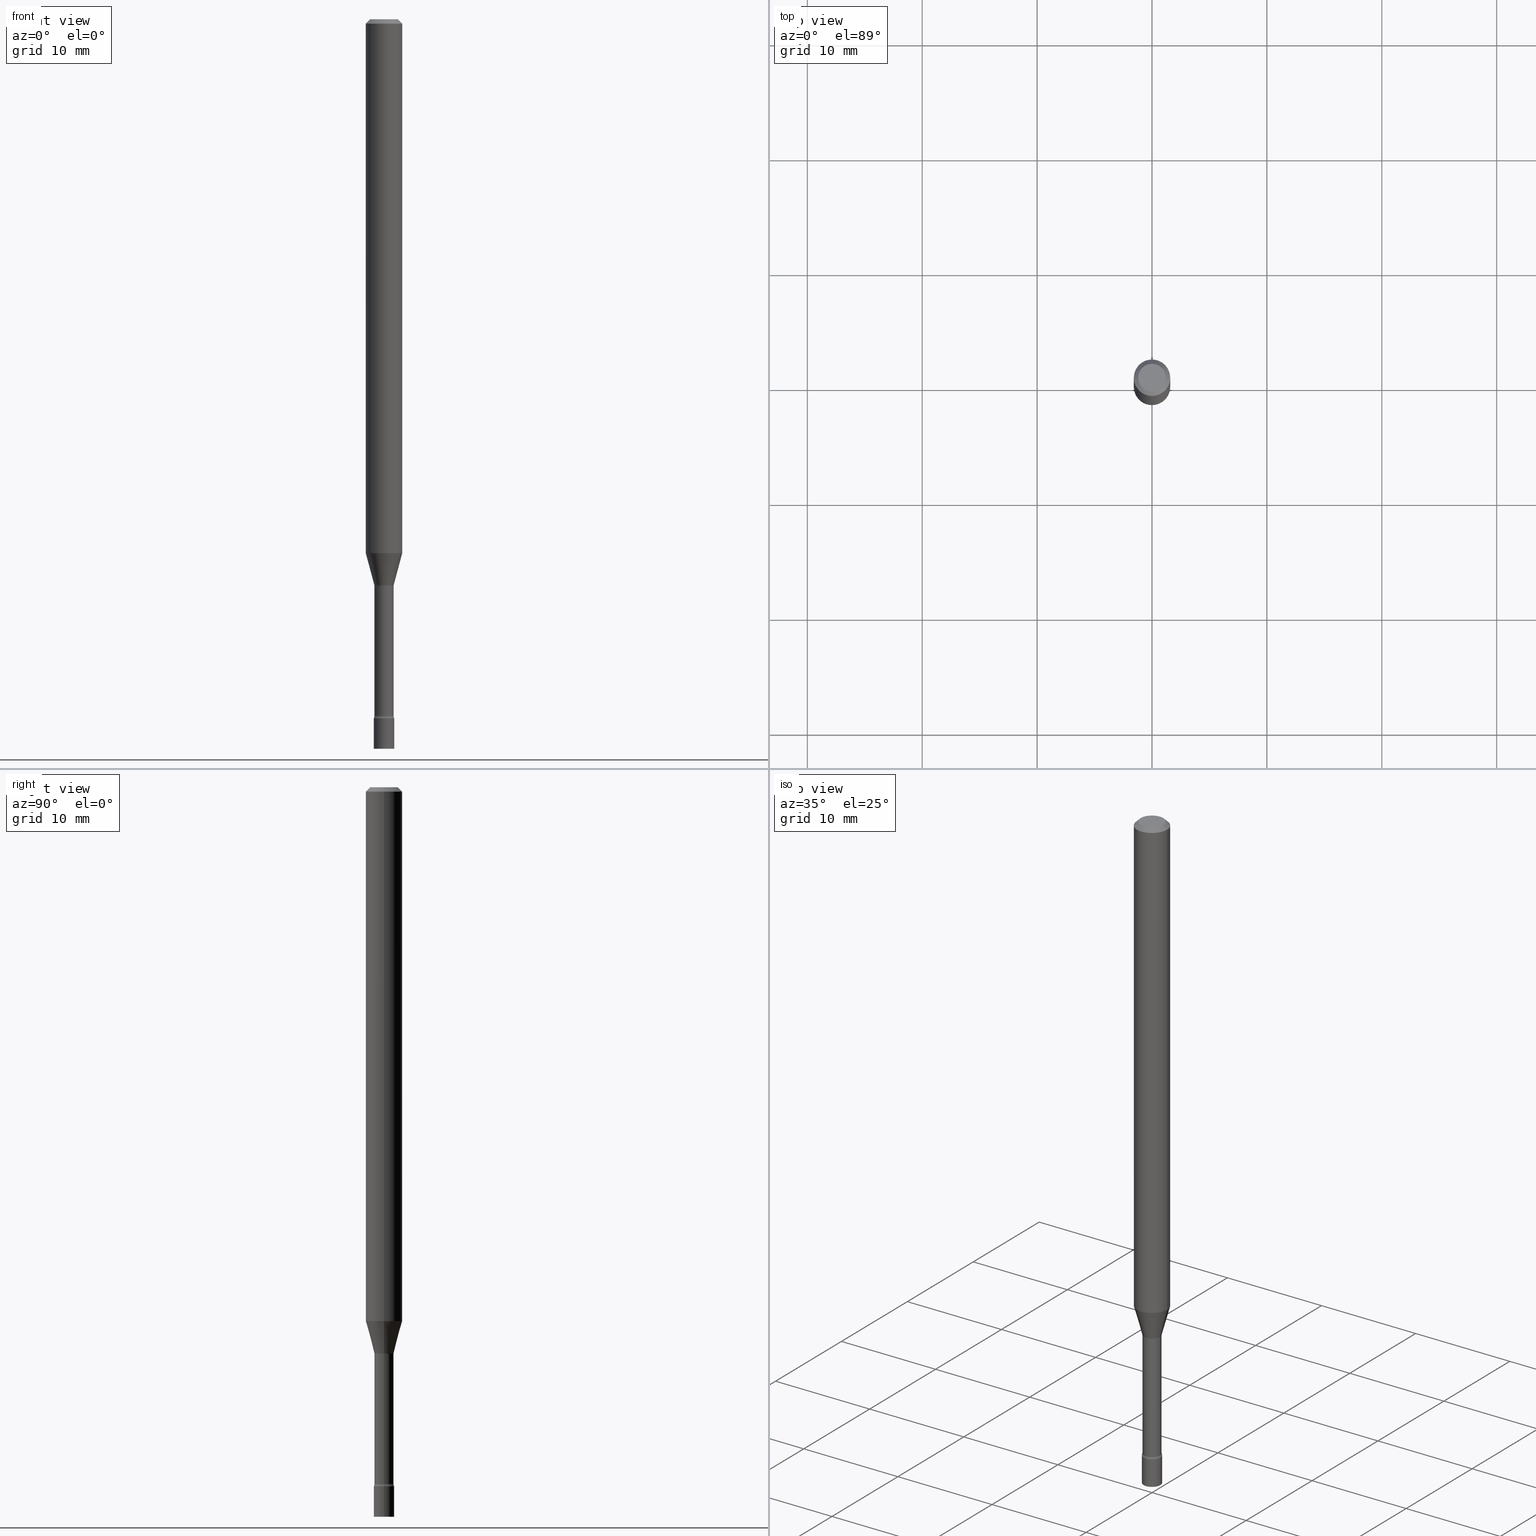
[diagram: canonical four-view strip — front | top / right | iso, engineering-drawing reading convention]
A machine part, canonical four-view strip (front | top / right | iso — engineering-drawing reading convention). The complete STEP part file that produces these views, byte-faithful:
ISO-10303-21;
HEADER;
FILE_DESCRIPTION (( 'STEP AP203' ),
    '1' );
FILE_NAME ('09706.STEP',
    '2024-03-09T01:03:56',
    ( '' ),
    ( '' ),
    'SwSTEP 2.0',
    'SolidWorks 2023',
    '' );
FILE_SCHEMA (( 'CONFIG_CONTROL_DESIGN' ));
ENDSEC;

DATA;
#1 = DIRECTION ( 'NONE',  ( -2.445468806185136597E-29, 3.491481338843145583E-15, 1.000000000000000000 ) ) ;
#2 = VERTEX_POINT ( 'NONE', #297 ) ;
#3 = DIRECTION ( 'NONE',  ( -2.445468806185136597E-29, 3.491481338843145583E-15, 1.000000000000000000 ) ) ;
#4 = CIRCLE ( 'NONE', #302, 0.06250000000000000000 ) ;
#5 = ORGANIZATION ( 'UNSPECIFIED', 'UNSPECIFIED', '' ) ;
#6 = ORIENTED_EDGE ( 'NONE', *, *, #220, .F. ) ;
#7 = LINE ( 'NONE', #327, #363 ) ;
#8 = CARTESIAN_POINT ( 'NONE',  ( 0.000000000000000000, 0.000000000000000000, 0.000000000000000000 ) ) ;
#9 = AXIS2_PLACEMENT_3D ( 'NONE', #372, #30, #25 ) ;
#10 = ADVANCED_FACE ( 'NONE', ( #123 ), #55, .T. ) ;
#11 = DIRECTION ( 'NONE',  ( 1.000000000000000000, 0.000000000000000000, 0.000000000000000000 ) ) ;
#12 = LINE ( 'NONE', #492, #133 ) ;
#13 = CARTESIAN_POINT ( 'NONE',  ( 5.856897790813402508E-29, -8.362097806529333416E-15, -2.395000000000000018 ) ) ;
#14 = DIRECTION ( 'NONE',  ( 0.000000000000000000, 0.000000000000000000, 1.000000000000000000 ) ) ;
#15 = DIRECTION ( 'NONE',  ( -2.445468806185136597E-29, 3.491481338843145583E-15, 1.000000000000000000 ) ) ;
#16 = ORIENTED_EDGE ( 'NONE', *, *, #505, .F. ) ;
#17 = EDGE_CURVE ( 'NONE', #518, #483, #121, .T. ) ;
#18 = CARTESIAN_POINT ( 'NONE',  ( -0.03500000000000000333, -8.296710619302563893E-15, -2.500000000000000000 ) ) ;
#19 = CALENDAR_DATE ( 2024, 8, 3 ) ;
#20 = VECTOR ( 'NONE', #422, 39.37007874015748143 ) ;
#21 = TOROIDAL_SURFACE ( 'NONE', #446, 0.04790000000000001201, 0.01500000000000006710 ) ;
#22 = VERTEX_POINT ( 'NONE', #254 ) ;
#23 = CARTESIAN_POINT ( 'NONE',  ( 5.838179168722289395E-29, -8.335372575132116772E-15, -2.387345589506695731 ) ) ;
#24 = APPLICATION_CONTEXT ( 'configuration controlled 3d designs of mechanical parts and assemblies' ) ;
#25 = DIRECTION ( 'NONE',  ( 1.000000000000000000, -6.982962677686276966E-15, 0.000000000000000000 ) ) ;
#26 = DATE_AND_TIME ( #419, #288 ) ;
#27 = ORIENTED_EDGE ( 'NONE', *, *, #220, .T. ) ;
#28 = ADVANCED_FACE ( 'NONE', ( #171 ), #83, .T. ) ;
#29 = DIRECTION ( 'NONE',  ( -2.445468806185136597E-29, 3.491481338843145583E-15, 1.000000000000000000 ) ) ;
#30 = DIRECTION ( 'NONE',  ( -2.445468806185136597E-29, 3.491481338843145583E-15, 1.000000000000000000 ) ) ;
#31 = CALENDAR_DATE ( 2024, 8, 3 ) ;
#32 = PRODUCT_RELATED_PRODUCT_CATEGORY ( 'detail', '', ( #371 ) ) ;
#33 = PERSON_AND_ORGANIZATION_ROLE ( 'design_supplier' ) ;
#34 = UNCERTAINTY_MEASURE_WITH_UNIT (LENGTH_MEASURE( 1.000000000000000082E-05 ), #39, 'distance_accuracy_value', 'NONE');
#35 = ADVANCED_FACE ( 'NONE', ( #457 ), #127, .F. ) ;
#36 = CARTESIAN_POINT ( 'NONE',  ( -0.03500000000000000333, -8.296710619302563893E-15, -2.395000000000000018 ) ) ;
#37 = DIRECTION ( 'NONE',  ( -2.445468806185136877E-29, 3.491481338843145188E-15, 1.000000000000000000 ) ) ;
#38 = EDGE_LOOP ( 'NONE', ( #396, #141, #361, #226 ) ) ;
#39 =( CONVERSION_BASED_UNIT ( 'INCH', #76 ) LENGTH_UNIT ( ) NAMED_UNIT ( #201 ) );
#40 = ORIENTED_EDGE ( 'NONE', *, *, #367, .F. ) ;
#41 = EDGE_CURVE ( 'NONE', #420, #319, #12, .T. ) ;
#42 = ORIENTED_EDGE ( 'NONE', *, *, #212, .T. ) ;
#43 = CC_DESIGN_DATE_AND_TIME_ASSIGNMENT ( #255, #408, ( #388 ) ) ;
#44 = DIRECTION ( 'NONE',  ( -2.445468806185136597E-29, 3.491481338843145583E-15, 1.000000000000000000 ) ) ;
#45 = VECTOR ( 'NONE', #466, 39.37007874015748143 ) ;
#46 = LOCAL_TIME ( 20, 3, 56.00000000000000000, #146 ) ;
#47 = DIRECTION ( 'NONE',  ( -2.438088387897960049E-29, 3.491481338843145188E-15, 1.000000000000000000 ) ) ;
#48 = DIRECTION ( 'NONE',  ( 1.000000000000000000, -6.982962677686266711E-15, 4.876176775795935793E-29 ) ) ;
#49 = ADVANCED_FACE ( 'NONE', ( #207 ), #214, .T. ) ;
#50 = LINE ( 'NONE', #213, #445 ) ;
#51 = CIRCLE ( 'NONE', #187, 0.06250000000000000000 ) ;
#52 = COORDINATED_UNIVERSAL_TIME_OFFSET ( 5, 0, .BEHIND. ) ;
#53 = EDGE_LOOP ( 'NONE', ( #351, #172, #27, #512 ) ) ;
#54 = EDGE_CURVE ( 'NONE', #68, #295, #216, .T. ) ;
#55 = CYLINDRICAL_SURFACE ( 'NONE', #413, 0.03289999999999996400 ) ;
#56 = DIRECTION ( 'NONE',  ( -6.982962677686266711E-15, -1.000000000000000000, 3.491481338843145583E-15 ) ) ;
#57 = CARTESIAN_POINT ( 'NONE',  ( 0.03500000000000003803, -8.606501500248354960E-15, -2.395000000000000018 ) ) ;
#58 = CIRCLE ( 'NONE', #322, 0.03341111260566397706 ) ;
#59 = CONICAL_SURFACE ( 'NONE', #395, 0.03341111260566397706, 0.2617993877991501850 ) ;
#60 = ORIENTED_EDGE ( 'NONE', *, *, #129, .F. ) ;
#61 = CARTESIAN_POINT ( 'NONE',  ( 4.474061714542137038E-29, -6.387774379148563553E-15, -1.829531296095961546 ) ) ;
#62 = SHAPE_DEFINITION_REPRESENTATION ( #299, #124 ) ;
#63 = AXIS2_PLACEMENT_3D ( 'NONE', #506, #101, #145 ) ;
#64 = CC_DESIGN_SECURITY_CLASSIFICATION ( #416, ( #364 ) ) ;
#65 = CARTESIAN_POINT ( 'NONE',  ( 2.444036937190804617E-16, 0.03499999999999127420, -2.500000000000000000 ) ) ;
#66 = ADVANCED_FACE ( 'NONE', ( #251 ), #401, .T. ) ;
#67 = ORIENTED_EDGE ( 'NONE', *, *, #196, .T. ) ;
#68 = VERTEX_POINT ( 'NONE', #18 ) ;
#69 = CARTESIAN_POINT ( 'NONE',  ( 4.749038765140760416E-29, -6.780368730933779783E-15, -1.941974787463811136 ) ) ;
#70 = DIRECTION ( 'NONE',  ( -2.445468806185136597E-29, 3.491481338843145583E-15, 1.000000000000000000 ) ) ;
#71 = ORIENTED_EDGE ( 'NONE', *, *, #204, .F. ) ;
#72 = CIRCLE ( 'NONE', #168, 0.03341111260566397706 ) ;
#73 = AXIS2_PLACEMENT_3D ( 'NONE', #239, #158, #317 ) ;
#74 = DIRECTION ( 'NONE',  ( 1.000000000000000000, -6.982962677686267499E-15, 4.876176775795936353E-29 ) ) ;
#75 = EDGE_CURVE ( 'NONE', #295, #91, #385, .T. ) ;
#76 = LENGTH_MEASURE_WITH_UNIT ( LENGTH_MEASURE( 0.02539999999999999897 ), #469 );
#77 = ORIENTED_EDGE ( 'NONE', *, *, #482, .F. ) ;
#78 = EDGE_LOOP ( 'NONE', ( #137, #42, #156, #493 ) ) ;
#79 = DIRECTION ( 'NONE',  ( -2.445468806185136597E-29, 3.491481338843145583E-15, 1.000000000000000000 ) ) ;
#80 = ORIENTED_EDGE ( 'NONE', *, *, #196, .F. ) ;
#81 = CARTESIAN_POINT ( 'NONE',  ( -0.03289999999999994318, -8.107505932040171616E-15, -2.387345589506695731 ) ) ;
#82 = ORIENTED_EDGE ( 'NONE', *, *, #290, .F. ) ;
#83 = CONICAL_SURFACE ( 'NONE', #294, 0.06250000000000000000, 0.7853981633974483900 ) ;
#84 = AXIS2_PLACEMENT_3D ( 'NONE', #511, #160, #323 ) ;
#85 = CARTESIAN_POINT ( 'NONE',  ( -0.04789999999999999813, -6.440018760504691413E-15, -1.941974787463811136 ) ) ;
#86 = DIRECTION ( 'NONE',  ( 1.000000000000000000, -6.982962677686267499E-15, 4.876176775795936353E-29 ) ) ;
#87 = PERSON_AND_ORGANIZATION ( #269, #5 ) ;
#88 = CARTESIAN_POINT ( 'NONE',  ( 0.000000000000000000, 0.000000000000000000, 0.000000000000000000 ) ) ;
#89 = AXIS2_PLACEMENT_3D ( 'NONE', #460, #418, #224 ) ;
#90 = COORDINATED_UNIVERSAL_TIME_OFFSET ( 5, 0, .BEHIND. ) ;
#91 = VERTEX_POINT ( 'NONE', #333 ) ;
#92 = DATE_AND_TIME ( #19, #46 ) ;
#93 = CC_DESIGN_PERSON_AND_ORGANIZATION_ASSIGNMENT ( #186, #33, ( #364 ) ) ;
#94 = DIRECTION ( 'NONE',  ( -2.445468806185136597E-29, 3.491481338843145583E-15, 1.000000000000000000 ) ) ;
#95 = FACE_OUTER_BOUND ( 'NONE', #373, .T. ) ;
#96 = ORIENTED_EDGE ( 'NONE', *, *, #54, .F. ) ;
#97 = FACE_OUTER_BOUND ( 'NONE', #164, .T. ) ;
#98 = VECTOR ( 'NONE', #37, 39.37007874015748143 ) ;
#99 = DIRECTION ( 'NONE',  ( -2.445468806185136597E-29, 3.491481338843145583E-15, 1.000000000000000000 ) ) ;
#100 = EDGE_LOOP ( 'NONE', ( #318, #175, #223, #390 ) ) ;
#101 = DIRECTION ( 'NONE',  ( -2.445468806185136597E-29, 3.491481338843145583E-15, 1.000000000000000000 ) ) ;
#102 = DIRECTION ( 'NONE',  ( 1.000000000000000000, -6.982962677686266711E-15, 4.883557194083113462E-29 ) ) ;
#103 = PLANE ( 'NONE',  #454 ) ;
#104 = CIRCLE ( 'NONE', #143, 0.03289999999999994318 ) ;
#105 = CIRCLE ( 'NONE', #9, 0.03500000000000000333 ) ;
#106 = AXIS2_PLACEMENT_3D ( 'NONE', #346, #70, #283 ) ;
#107 = VERTEX_POINT ( 'NONE', #57 ) ;
#108 = DIRECTION ( 'NONE',  ( -2.445468806185136597E-29, 3.491481338843145583E-15, 1.000000000000000000 ) ) ;
#109 = ORIENTED_EDGE ( 'NONE', *, *, #285, .F. ) ;
#110 = CARTESIAN_POINT ( 'NONE',  ( 0.03289999999999999175, -7.010108203029657542E-15, -1.941974787463811136 ) ) ;
#111 = EDGE_CURVE ( 'NONE', #501, #2, #51, .T. ) ;
#112 = CARTESIAN_POINT ( 'NONE',  ( 7.070806723891919892E-46, -1.009523804376275404E-31, -2.891391092786900929E-17 ) ) ;
#113 = EDGE_LOOP ( 'NONE', ( #520, #275 ) ) ;
#114 = AXIS2_PLACEMENT_3D ( 'NONE', #338, #303, #464 ) ;
#115 = EDGE_CURVE ( 'NONE', #440, #518, #58, .T. ) ;
#116 = EDGE_LOOP ( 'NONE', ( #424, #465, #82, #60 ) ) ;
#117 = DIRECTION ( 'NONE',  ( 1.000000000000000000, -6.982962677686262766E-15, 0.000000000000000000 ) ) ;
#118 = APPROVAL_ROLE ( '' ) ;
#119 = ORIENTED_EDGE ( 'NONE', *, *, #212, .F. ) ;
#120 = DIRECTION ( 'NONE',  ( -2.445468806185136597E-29, 3.491481338843145583E-15, 1.000000000000000000 ) ) ;
#121 = CIRCLE ( 'NONE', #162, 0.01500000000000001853 ) ;
#122 = AXIS2_PLACEMENT_3D ( 'NONE', #225, #56, #263 ) ;
#123 = FACE_OUTER_BOUND ( 'NONE', #38, .T. ) ;
#124 = ADVANCED_BREP_SHAPE_REPRESENTATION ( '09706', ( #244, #432, #463 ), #495 ) ;
#125 = DIRECTION ( 'NONE',  ( 1.000000000000000000, -6.982962677686276966E-15, 0.000000000000000000 ) ) ;
#126 = DATE_AND_TIME ( #291, #155 ) ;
#127 = PLANE ( 'NONE',  #229 ) ;
#128 = PERSON_AND_ORGANIZATION_ROLE ( 'design_owner' ) ;
#129 = EDGE_CURVE ( 'NONE', #501, #245, #300, .T. ) ;
#130 = CARTESIAN_POINT ( 'NONE',  ( 3.668203209277712094E-31, -5.237222008264728876E-17, -0.01500000000000003067 ) ) ;
#131 = EDGE_LOOP ( 'NONE', ( #324, #441, #182, #119 ) ) ;
#132 = CALENDAR_DATE ( 2024, 8, 3 ) ;
#133 = VECTOR ( 'NONE', #334, 39.37007874015748143 ) ;
#134 = EDGE_LOOP ( 'NONE', ( #387, #472, #352, #474 ) ) ;
#135 = APPROVAL ( #490, 'UNSPECIFIED' ) ;
#136 = PERSON_AND_ORGANIZATION ( #269, #5 ) ;
#137 = ORIENTED_EDGE ( 'NONE', *, *, #345, .F. ) ;
#138 = CARTESIAN_POINT ( 'NONE',  ( 5.856897790813402508E-29, -8.362097806529333416E-15, -2.395000000000000018 ) ) ;
#139 = CARTESIAN_POINT ( 'NONE',  ( 5.838179168722290516E-29, -8.335372575132116772E-15, -2.387345589506695731 ) ) ;
#140 = PERSON_AND_ORGANIZATION_ROLE ( 'creator' ) ;
#141 = ORIENTED_EDGE ( 'NONE', *, *, #150, .T. ) ;
#142 = DATE_AND_TIME ( #31, #405 ) ;
#143 = AXIS2_PLACEMENT_3D ( 'NONE', #320, #274, #348 ) ;
#144 = CC_DESIGN_APPROVAL ( #438, ( #364 ) ) ;
#145 = DIRECTION ( 'NONE',  ( 1.000000000000000000, -6.982962677686273810E-15, 4.883557194083115704E-29 ) ) ;
#146 = COORDINATED_UNIVERSAL_TIME_OFFSET ( 5, 0, .BEHIND. ) ;
#147 = DIRECTION ( 'NONE',  ( -1.000000000000000000, 7.105427357601022369E-15, 0.000000000000000000 ) ) ;
#148 = ORIENTED_EDGE ( 'NONE', *, *, #332, .F. ) ;
#149 = CARTESIAN_POINT ( 'NONE',  ( -0.03289999999999996400, 2.337685600650727053E-16, -1.618329644693862428E-30 ) ) ;
#150 = EDGE_CURVE ( 'NONE', #240, #483, #261, .T. ) ;
#151 = DIRECTION ( 'NONE',  ( -2.445468806185136597E-29, 3.491481338843145583E-15, 1.000000000000000000 ) ) ;
#152 = DIRECTION ( 'NONE',  ( -1.000000000000000000, 6.982962677686266711E-15, 0.000000000000000000 ) ) ;
#153 = AXIS2_PLACEMENT_3D ( 'NONE', #13, #47, #365 ) ;
#154 =( NAMED_UNIT ( * ) SI_UNIT ( $, .STERADIAN. ) SOLID_ANGLE_UNIT ( ) );
#155 = LOCAL_TIME ( 20, 3, 56.00000000000000000, #90 ) ;
#156 = ORIENTED_EDGE ( 'NONE', *, *, #129, .T. ) ;
#157 = ADVANCED_FACE ( 'NONE', ( #259 ), #340, .T. ) ;
#158 = DIRECTION ( 'NONE',  ( -2.445468806185136597E-29, 3.491481338843145583E-15, 1.000000000000000000 ) ) ;
#159 = ORIENTED_EDGE ( 'NONE', *, *, #17, .F. ) ;
#160 = DIRECTION ( 'NONE',  ( -2.445468806185136597E-29, 3.491481338843145583E-15, 1.000000000000000000 ) ) ;
#161 = ORIENTED_EDGE ( 'NONE', *, *, #262, .T. ) ;
#162 = AXIS2_PLACEMENT_3D ( 'NONE', #85, #448, #491 ) ;
#163 = AXIS2_PLACEMENT_3D ( 'NONE', #232, #99, #425 ) ;
#164 = EDGE_LOOP ( 'NONE', ( #77, #67, #504, #197 ) ) ;
#165 = APPROVAL_ROLE ( '' ) ;
#166 = ADVANCED_FACE ( 'NONE', ( #97 ), #236, .T. ) ;
#167 = DIRECTION ( 'NONE',  ( 0.2588190451025214611, 1.565188264969620982E-15, 0.9659258262890679791 ) ) ;
#168 = AXIS2_PLACEMENT_3D ( 'NONE', #198, #44, #241 ) ;
#169 = MECHANICAL_CONTEXT ( 'NONE', #293, 'mechanical' ) ;
#170 = ADVANCED_FACE ( 'NONE', ( #429 ), #378, .F. ) ;
#171 = FACE_OUTER_BOUND ( 'NONE', #185, .T. ) ;
#172 = ORIENTED_EDGE ( 'NONE', *, *, #17, .T. ) ;
#173 = CARTESIAN_POINT ( 'NONE',  ( -0.03500000000000003803, -8.113407849013298919E-15, -2.395000000000000018 ) ) ;
#174 = DIRECTION ( 'NONE',  ( -2.445468806185136597E-29, 3.491481338843145583E-15, 1.000000000000000000 ) ) ;
#175 = ORIENTED_EDGE ( 'NONE', *, *, #54, .T. ) ;
#176 = ORIENTED_EDGE ( 'NONE', *, *, #150, .F. ) ;
#177 = AXIS2_PLACEMENT_3D ( 'NONE', #314, #433, #235 ) ;
#178 = CIRCLE ( 'NONE', #84, 0.03289999999999999175 ) ;
#179 = VERTEX_POINT ( 'NONE', #307 ) ;
#180 = EDGE_CURVE ( 'NONE', #91, #295, #105, .T. ) ;
#181 = DIRECTION ( 'NONE',  ( 7.105427357601001859E-15, 1.000000000000000000, -3.491481338843145583E-15 ) ) ;
#182 = ORIENTED_EDGE ( 'NONE', *, *, #332, .T. ) ;
#183 = DIRECTION ( 'NONE',  ( -1.000000000000000000, 6.982962677686265922E-15, -4.876176775795935793E-29 ) ) ;
#184 = DATE_TIME_ROLE ( 'classification_date' ) ;
#185 = EDGE_LOOP ( 'NONE', ( #80, #16, #443, #477 ) ) ;
#186 = PERSON_AND_ORGANIZATION ( #269, #5 ) ;
#187 = AXIS2_PLACEMENT_3D ( 'NONE', #411, #430, #191 ) ;
#188 = CIRCLE ( 'NONE', #311, 0.04749999999999999362 ) ;
#189 = FACE_OUTER_BOUND ( 'NONE', #134, .T. ) ;
#190 = ADVANCED_FACE ( 'NONE', ( #467 ), #103, .T. ) ;
#191 = DIRECTION ( 'NONE',  ( 1.000000000000000000, -6.982962677686262766E-15, 0.000000000000000000 ) ) ;
#192 = CYLINDRICAL_SURFACE ( 'NONE', #203, 0.03289999999999996400 ) ;
#193 = CIRCLE ( 'NONE', #114, 0.03500000000000000333 ) ;
#194 = EDGE_LOOP ( 'NONE', ( #109, #284, #316, #40 ) ) ;
#195 = FACE_OUTER_BOUND ( 'NONE', #391, .T. ) ;
#196 = EDGE_CURVE ( 'NONE', #384, #245, #309, .T. ) ;
#197 = ORIENTED_EDGE ( 'NONE', *, *, #41, .F. ) ;
#198 = CARTESIAN_POINT ( 'NONE',  ( 4.739544756622087673E-29, -6.766813802942090775E-15, -1.938092501787273214 ) ) ;
#199 = FACE_OUTER_BOUND ( 'NONE', #194, .T. ) ;
#200 = ORIENTED_EDGE ( 'NONE', *, *, #75, .T. ) ;
#201 = DIMENSIONAL_EXPONENTS ( 1.000000000000000000, 0.000000000000000000, 0.000000000000000000, 0.000000000000000000, 0.000000000000000000, 0.000000000000000000, 0.000000000000000000 ) ;
#202 = ORIENTED_EDGE ( 'NONE', *, *, #111, .F. ) ;
#203 = AXIS2_PLACEMENT_3D ( 'NONE', #436, #1, #74 ) ;
#204 = EDGE_CURVE ( 'NONE', #22, #68, #193, .T. ) ;
#205 = DIRECTION ( 'NONE',  ( 1.000000000000000000, -6.982962677686273810E-15, 4.883557194083115704E-29 ) ) ;
#206 = APPLICATION_PROTOCOL_DEFINITION ( 'international standard', 'config_control_design', 1994, #293 ) ;
#207 = FACE_OUTER_BOUND ( 'NONE', #78, .T. ) ;
#208 = ADVANCED_FACE ( 'NONE', ( #376 ), #230, .T. ) ;
#209 = AXIS2_PLACEMENT_3D ( 'NONE', #281, #120, #125 ) ;
#210 = AXIS2_PLACEMENT_3D ( 'NONE', #308, #350, #473 ) ;
#211 = CARTESIAN_POINT ( 'NONE',  ( 0.000000000000000000, 0.000000000000000000, 0.000000000000000000 ) ) ;
#212 = EDGE_CURVE ( 'NONE', #2, #501, #4, .T. ) ;
#213 = CARTESIAN_POINT ( 'NONE',  ( 0.03341111260566397706, -7.000122355287414580E-15, -1.938092501787273214 ) ) ;
#214 = CYLINDRICAL_SURFACE ( 'NONE', #478, 0.06250000000000000000 ) ;
#215 = PERSON_AND_ORGANIZATION ( #269, #5 ) ;
#216 = LINE ( 'NONE', #362, #258 ) ;
#217 = COORDINATED_UNIVERSAL_TIME_OFFSET ( 5, 0, .BEHIND. ) ;
#218 = CARTESIAN_POINT ( 'NONE',  ( 0.04749999999999999362, -4.035134999187579609E-16, -2.891391092786643933E-17 ) ) ;
#219 = VECTOR ( 'NONE', #414, 39.37007874015748143 ) ;
#220 = EDGE_CURVE ( 'NONE', #483, #243, #369, .T. ) ;
#221 = CIRCLE ( 'NONE', #439, 0.01500000000000007057 ) ;
#222 = APPROVAL_DATE_TIME ( #142, #438 ) ;
#223 = ORIENTED_EDGE ( 'NONE', *, *, #180, .F. ) ;
#224 = DIRECTION ( 'NONE',  ( 1.000000000000000000, -6.982962677686254878E-15, 0.000000000000000000 ) ) ;
#225 = CARTESIAN_POINT ( 'NONE',  ( 0.04790000000000001201, -8.669856487393289478E-15, -2.387345589506695731 ) ) ;
#226 = ORIENTED_EDGE ( 'NONE', *, *, #262, .F. ) ;
#227 = DIRECTION ( 'NONE',  ( -2.445468806185136877E-29, 3.491481338843145188E-15, 1.000000000000000000 ) ) ;
#228 = DIRECTION ( 'NONE',  ( 2.445468806185136597E-29, -3.491481338843145583E-15, -1.000000000000000000 ) ) ;
#229 = AXIS2_PLACEMENT_3D ( 'NONE', #292, #399, #451 ) ;
#230 = CYLINDRICAL_SURFACE ( 'NONE', #163, 0.03500000000000000333 ) ;
#231 = CARTESIAN_POINT ( 'NONE',  ( -0.03289999999999999869, -7.324102092967875030E-15, -1.941974787463811136 ) ) ;
#232 = CARTESIAN_POINT ( 'NONE',  ( 0.000000000000000000, 0.000000000000000000, 0.000000000000000000 ) ) ;
#233 = PLANE ( 'NONE',  #238 ) ;
#234 = EDGE_LOOP ( 'NONE', ( #355, #200 ) ) ;
#235 = DIRECTION ( 'NONE',  ( 1.000000000000000000, -6.982962677686266711E-15, 0.000000000000000000 ) ) ;
#236 = CONICAL_SURFACE ( 'NONE', #502, 0.06250000000000000000, 0.7853981633974483900 ) ;
#237 = CARTESIAN_POINT ( 'NONE',  ( 0.03500000000000000333, -2.444036937190193250E-16, 1.706661871528577808E-30 ) ) ;
#238 = AXIS2_PLACEMENT_3D ( 'NONE', #386, #480, #514 ) ;
#239 = CARTESIAN_POINT ( 'NONE',  ( 5.838179168722290516E-29, -8.335372575132116772E-15, -2.387345589506695731 ) ) ;
#240 = VERTEX_POINT ( 'NONE', #81 ) ;
#241 = DIRECTION ( 'NONE',  ( 1.000000000000000000, -6.982962677686254878E-15, 0.000000000000000000 ) ) ;
#242 = CARTESIAN_POINT ( 'NONE',  ( -0.03341111260566397706, -6.236549369342210756E-15, -1.938092501787273214 ) ) ;
#243 = VERTEX_POINT ( 'NONE', #110 ) ;
#244 = MANIFOLD_SOLID_BREP ( 'Body-Move/Copy2[1]', #347 ) ;
#245 = VERTEX_POINT ( 'NONE', #393 ) ;
#246 = CIRCLE ( 'NONE', #209, 0.03500000000000000333 ) ;
#247 = CIRCLE ( 'NONE', #106, 0.04749999999999999362 ) ;
#248 = EDGE_CURVE ( 'NONE', #518, #440, #72, .T. ) ;
#249 = DIRECTION ( 'NONE',  ( 2.445468806185136597E-29, -3.491481338843145583E-15, -1.000000000000000000 ) ) ;
#250 = CARTESIAN_POINT ( 'NONE',  ( -0.03341111260566397706, -6.529413569385918209E-15, -1.938092501787273214 ) ) ;
#251 = FACE_OUTER_BOUND ( 'NONE', #116, .T. ) ;
#252 = VECTOR ( 'NONE', #227, 39.37007874015748143 ) ;
#253 = PERSON_AND_ORGANIZATION ( #269, #5 ) ;
#254 = CARTESIAN_POINT ( 'NONE',  ( 0.03500000000000000333, -8.973107040826884909E-15, -2.500000000000000000 ) ) ;
#255 = DATE_AND_TIME ( #132, #268 ) ;
#256 = DIRECTION ( 'NONE',  ( 1.000000000000000000, -6.982962677686276966E-15, 0.000000000000000000 ) ) ;
#257 = COORDINATED_UNIVERSAL_TIME_OFFSET ( 5, 0, .BEHIND. ) ;
#258 = VECTOR ( 'NONE', #331, 39.37007874015748143 ) ;
#259 = FACE_OUTER_BOUND ( 'NONE', #131, .T. ) ;
#260 = CARTESIAN_POINT ( 'NONE',  ( 0.04789999999999999813, -7.114852643194952489E-15, -1.941974787463811136 ) ) ;
#261 = LINE ( 'NONE', #149, #252 ) ;
#262 = EDGE_CURVE ( 'NONE', #179, #243, #7, .T. ) ;
#263 = DIRECTION ( 'NONE',  ( 1.000000000000000000, -6.982962677686235156E-15, 0.000000000000000000 ) ) ;
#264 = DIRECTION ( 'NONE',  ( 2.438088387897960049E-29, -3.491481338843145188E-15, -1.000000000000000000 ) ) ;
#265 = CC_DESIGN_DATE_AND_TIME_ASSIGNMENT ( #26, #184, ( #416 ) ) ;
#266 = DIRECTION ( 'NONE',  ( -2.445468806185136597E-29, 3.491481338843145583E-15, 1.000000000000000000 ) ) ;
#267 = DESIGN_CONTEXT ( 'detailed design', #24, 'design' ) ;
#268 = LOCAL_TIME ( 20, 3, 56.00000000000000000, #52 ) ;
#269 = PERSON ( 'UNSPECIFIED', 'UNSPECIFIED', 'UNSPECIFIED', ('UNSPECIFIED'), ('UNSPECIFIED'), ('UNSPECIFIED') ) ;
#270 = CARTESIAN_POINT ( 'NONE',  ( -0.04749999999999999362, 3.578768372314209027E-16, -2.891391092787141902E-17 ) ) ;
#271 = EDGE_LOOP ( 'NONE', ( #159, #325, #280, #359 ) ) ;
#272 = ORIENTED_EDGE ( 'NONE', *, *, #75, .F. ) ;
#273 = EDGE_CURVE ( 'NONE', #319, #245, #357, .T. ) ;
#274 = DIRECTION ( 'NONE',  ( -2.445468806185136597E-29, 3.491481338843145583E-15, 1.000000000000000000 ) ) ;
#275 = ORIENTED_EDGE ( 'NONE', *, *, #482, .T. ) ;
#276 = DIRECTION ( 'NONE',  ( 1.000000000000000000, -6.982962677686265922E-15, 4.876176775795936353E-29 ) ) ;
#277 = DIRECTION ( 'NONE',  ( -2.445468806185136877E-29, 3.491481338843145188E-15, 1.000000000000000000 ) ) ;
#278 = DIRECTION ( 'NONE',  ( 1.000000000000000000, -6.982962677686276966E-15, 0.000000000000000000 ) ) ;
#279 = APPROVAL_PERSON_ORGANIZATION ( #339, #468, #507 ) ;
#280 = ORIENTED_EDGE ( 'NONE', *, *, #353, .T. ) ;
#281 = CARTESIAN_POINT ( 'NONE',  ( 5.856897790813402508E-29, -8.362097806529333416E-15, -2.395000000000000018 ) ) ;
#282 = ADVANCED_FACE ( 'NONE', ( #398 ), #192, .T. ) ;
#283 = DIRECTION ( 'NONE',  ( 1.000000000000000000, -6.982962677686267499E-15, 4.876681293081646444E-29 ) ) ;
#284 = ORIENTED_EDGE ( 'NONE', *, *, #403, .T. ) ;
#285 = EDGE_CURVE ( 'NONE', #240, #179, #104, .T. ) ;
#286 = APPROVAL_STATUS ( 'not_yet_approved' ) ;
#287 = AXIS2_PLACEMENT_3D ( 'NONE', #260, #421, #377 ) ;
#288 = LOCAL_TIME ( 20, 3, 56.00000000000000000, #217 ) ;
#289 = CARTESIAN_POINT ( 'NONE',  ( -0.06250000000000000000, -2.775984089765543291E-15, -0.01500000000000003067 ) ) ;
#290 = EDGE_CURVE ( 'NONE', #245, #319, #394, .T. ) ;
#291 = CALENDAR_DATE ( 2024, 8, 3 ) ;
#292 = CARTESIAN_POINT ( 'NONE',  ( 3.316907271900976096E-16, 0.04749999999999999362, -1.803023190589839165E-16 ) ) ;
#293 = APPLICATION_CONTEXT ( 'configuration controlled 3d designs of mechanical parts and assemblies' ) ;
#294 = AXIS2_PLACEMENT_3D ( 'NONE', #130, #249, #409 ) ;
#295 = VERTEX_POINT ( 'NONE', #36 ) ;
#296 = ADVANCED_FACE ( 'NONE', ( #195 ), #519, .T. ) ;
#297 = CARTESIAN_POINT ( 'NONE',  ( -0.06250000000000000000, -5.943685169298501725E-15, -1.829531296095961546 ) ) ;
#298 = ORIENTED_EDGE ( 'NONE', *, *, #450, .T. ) ;
#299 = PRODUCT_DEFINITION_SHAPE ( 'NONE', 'NONE',  #388 ) ;
#300 = LINE ( 'NONE', #509, #45 ) ;
#301 = ADVANCED_FACE ( 'NONE', ( #360 ), #494, .F. ) ;
#302 = AXIS2_PLACEMENT_3D ( 'NONE', #61, #3, #117 ) ;
#303 = DIRECTION ( 'NONE',  ( -2.445468806185136597E-29, 3.491481338843145583E-15, 1.000000000000000000 ) ) ;
#304 = AXIS2_PLACEMENT_3D ( 'NONE', #517, #151, #278 ) ;
#305 = CARTESIAN_POINT ( 'NONE',  ( -0.06250000000000000000, 4.440892098500626162E-16, -3.074334431409316114E-30 ) ) ;
#306 = CC_DESIGN_PERSON_AND_ORGANIZATION_ASSIGNMENT ( #253, #407, ( #388 ) ) ;
#307 = CARTESIAN_POINT ( 'NONE',  ( 0.03289999999999994318, -8.565112047227994531E-15, -2.387345589506695731 ) ) ;
#308 = CARTESIAN_POINT ( 'NONE',  ( 6.113672015462842613E-29, -8.728703347107864943E-15, -2.500000000000000000 ) ) ;
#309 = LINE ( 'NONE', #471, #20 ) ;
#310 = VECTOR ( 'NONE', #400, 39.37007874015748143 ) ;
#311 = AXIS2_PLACEMENT_3D ( 'NONE', #112, #79, #315 ) ;
#312 = EDGE_CURVE ( 'NONE', #107, #335, #246, .T. ) ;
#313 = EDGE_LOOP ( 'NONE', ( #435, #500 ) ) ;
#314 = CARTESIAN_POINT ( 'NONE',  ( 3.668203209277712094E-31, -5.237222008264728876E-17, -0.01500000000000003067 ) ) ;
#315 = DIRECTION ( 'NONE',  ( 1.000000000000000000, -6.982962677686267499E-15, 4.876681293081646444E-29 ) ) ;
#316 = ORIENTED_EDGE ( 'NONE', *, *, #459, .T. ) ;
#317 = DIRECTION ( 'NONE',  ( 1.000000000000000000, -6.982962677686266711E-15, 4.883557194083113462E-29 ) ) ;
#318 = ORIENTED_EDGE ( 'NONE', *, *, #204, .T. ) ;
#319 = VERTEX_POINT ( 'NONE', #289 ) ;
#320 = CARTESIAN_POINT ( 'NONE',  ( 5.838179168722289395E-29, -8.335372575132116772E-15, -2.387345589506695731 ) ) ;
#321 = EDGE_CURVE ( 'NONE', #518, #2, #449, .T. ) ;
#322 = AXIS2_PLACEMENT_3D ( 'NONE', #344, #379, #498 ) ;
#323 = DIRECTION ( 'NONE',  ( 1.000000000000000000, -6.982962677686254089E-15, 0.000000000000000000 ) ) ;
#324 = ORIENTED_EDGE ( 'NONE', *, *, #321, .F. ) ;
#325 = ORIENTED_EDGE ( 'NONE', *, *, #115, .F. ) ;
#326 = DIRECTION ( 'NONE',  ( -2.445468806185136597E-29, 3.491481338843145583E-15, 1.000000000000000000 ) ) ;
#327 = CARTESIAN_POINT ( 'NONE',  ( 0.03289999999999996400, -2.297394720958779555E-16, 1.604262159236861304E-30 ) ) ;
#328 = AXIS2_PLACEMENT_3D ( 'NONE', #88, #15, #368 ) ;
#329 = ADVANCED_FACE ( 'NONE', ( #397 ), #447, .T. ) ;
#330 = CARTESIAN_POINT ( 'NONE',  ( 4.749038765140760416E-29, -6.780368730933779783E-15, -1.941974787463811136 ) ) ;
#331 = DIRECTION ( 'NONE',  ( -2.445468806185136877E-29, 3.491481338843145188E-15, 1.000000000000000000 ) ) ;
#332 = EDGE_CURVE ( 'NONE', #440, #501, #50, .T. ) ;
#333 = CARTESIAN_POINT ( 'NONE',  ( 0.03500000000000000333, -8.606501500248353382E-15, -2.395000000000000018 ) ) ;
#334 = DIRECTION ( 'NONE',  ( -0.7071067811865475727, 2.468850131082257455E-15, -0.7071067811865474617 ) ) ;
#335 = VERTEX_POINT ( 'NONE', #173 ) ;
#336 = PERSON_AND_ORGANIZATION_ROLE ( 'classification_officer' ) ;
#337 = CARTESIAN_POINT ( 'NONE',  ( 4.739544756622087673E-29, -6.766813802942090775E-15, -1.938092501787273214 ) ) ;
#338 = CARTESIAN_POINT ( 'NONE',  ( 6.113672015462842613E-29, -8.728703347107864943E-15, -2.500000000000000000 ) ) ;
#339 = PERSON_AND_ORGANIZATION ( #269, #5 ) ;
#340 = CONICAL_SURFACE ( 'NONE', #89, 0.03341111260566397706, 0.2617993877991501850 ) ;
#341 = SECURITY_CLASSIFICATION_LEVEL ( 'unclassified' ) ;
#342 = DIRECTION ( 'NONE',  ( 1.000000000000000000, -6.982962677686264344E-15, 0.000000000000000000 ) ) ;
#343 = CARTESIAN_POINT ( 'NONE',  ( 0.03341111260566397706, -7.000122355287414580E-15, -1.938092501787273214 ) ) ;
#344 = CARTESIAN_POINT ( 'NONE',  ( 4.739544756622087673E-29, -6.766813802942090775E-15, -1.938092501787273214 ) ) ;
#345 = EDGE_CURVE ( 'NONE', #2, #319, #486, .T. ) ;
#346 = CARTESIAN_POINT ( 'NONE',  ( 7.070806723891919892E-46, -1.009523804376275404E-31, -2.891391092786900929E-17 ) ) ;
#347 = CLOSED_SHELL ( 'NONE', ( #208, #329, #296, #190 ) ) ;
#348 = DIRECTION ( 'NONE',  ( 1.000000000000000000, -6.982962677686264344E-15, 0.000000000000000000 ) ) ;
#349 = CIRCLE ( 'NONE', #122, 0.01500000000000007057 ) ;
#350 = DIRECTION ( 'NONE',  ( -2.445468806185136597E-29, 3.491481338843145583E-15, 1.000000000000000000 ) ) ;
#351 = ORIENTED_EDGE ( 'NONE', *, *, #248, .F. ) ;
#352 = ORIENTED_EDGE ( 'NONE', *, *, #367, .T. ) ;
#353 = EDGE_CURVE ( 'NONE', #440, #243, #515, .T. ) ;
#354 = DIRECTION ( 'NONE',  ( 1.000000000000000000, -6.982962677686266711E-15, 0.000000000000000000 ) ) ;
#355 = ORIENTED_EDGE ( 'NONE', *, *, #180, .T. ) ;
#356 = CC_DESIGN_PERSON_AND_ORGANIZATION_ASSIGNMENT ( #423, #140, ( #364 ) ) ;
#357 = CIRCLE ( 'NONE', #428, 0.06250000000000000000 ) ;
#358 = CIRCLE ( 'NONE', #304, 0.03500000000000000333 ) ;
#359 = ORIENTED_EDGE ( 'NONE', *, *, #427, .T. ) ;
#360 = FACE_OUTER_BOUND ( 'NONE', #53, .T. ) ;
#361 = ORIENTED_EDGE ( 'NONE', *, *, #427, .F. ) ;
#362 = CARTESIAN_POINT ( 'NONE',  ( -0.03500000000000000333, 2.486899575160350887E-16, -1.721627281589217108E-30 ) ) ;
#363 = VECTOR ( 'NONE', #277, 39.37007874015748143 ) ;
#364 = PRODUCT_DEFINITION_FORMATION_WITH_SPECIFIED_SOURCE ( 'ANY', '', #371, .NOT_KNOWN. ) ;
#365 = DIRECTION ( 'NONE',  ( 1.000000000000000000, -6.982962677686265922E-15, 4.876176775795935793E-29 ) ) ;
#366 = EDGE_LOOP ( 'NONE', ( #71, #510 ) ) ;
#367 = EDGE_CURVE ( 'NONE', #179, #107, #349, .T. ) ;
#368 = DIRECTION ( 'NONE',  ( 1.000000000000000000, -6.982962677686266711E-15, 4.876176775795935793E-29 ) ) ;
#369 = CIRCLE ( 'NONE', #404, 0.03289999999999999175 ) ;
#370 = APPROVAL_PERSON_ORGANIZATION ( #87, #135, #165 ) ;
#371 = PRODUCT ( '09706', '09706', '', ( #169 ) ) ;
#372 = CARTESIAN_POINT ( 'NONE',  ( 5.856897790813402508E-29, -8.362097806529333416E-15, -2.395000000000000018 ) ) ;
#373 = EDGE_LOOP ( 'NONE', ( #426, #431, #202, #148 ) ) ;
#374 = EDGE_CURVE ( 'NONE', #179, #240, #415, .T. ) ;
#375 = DIRECTION ( 'NONE',  ( -2.445468806185136597E-29, 3.491481338843145583E-15, 1.000000000000000000 ) ) ;
#376 = FACE_OUTER_BOUND ( 'NONE', #100, .T. ) ;
#377 = DIRECTION ( 'NONE',  ( 1.000000000000000000, -6.982962677686259611E-15, 0.000000000000000000 ) ) ;
#378 = TOROIDAL_SURFACE ( 'NONE', #63, 0.04789999999999999813, 0.01500000000000002373 ) ;
#379 = DIRECTION ( 'NONE',  ( -2.445468806185136597E-29, 3.491481338843145583E-15, 1.000000000000000000 ) ) ;
#380 = APPROVAL_PERSON_ORGANIZATION ( #485, #438, #118 ) ;
#381 = ADVANCED_FACE ( 'NONE', ( #189 ), #21, .F. ) ;
#382 =( NAMED_UNIT ( * ) PLANE_ANGLE_UNIT ( ) SI_UNIT ( $, .RADIAN. ) );
#383 = CARTESIAN_POINT ( 'NONE',  ( 0.06250000000000000000, -6.824209546503955222E-15, -1.829531296095961546 ) ) ;
#384 = VERTEX_POINT ( 'NONE', #218 ) ;
#385 = CIRCLE ( 'NONE', #462, 0.03500000000000000333 ) ;
#386 = CARTESIAN_POINT ( 'NONE',  ( 2.444036937190778979E-16, 0.03499999999999164196, -2.395000000000000018 ) ) ;
#387 = ORIENTED_EDGE ( 'NONE', *, *, #403, .F. ) ;
#388 = PRODUCT_DEFINITION ( 'UNKNOWN', '', #364, #267 ) ;
#389 = DIRECTION ( 'NONE',  ( 1.000000000000000000, -6.982962677686254878E-15, 0.000000000000000000 ) ) ;
#390 = ORIENTED_EDGE ( 'NONE', *, *, #497, .F. ) ;
#391 = EDGE_LOOP ( 'NONE', ( #96, #298, #410, #272 ) ) ;
#392 = CARTESIAN_POINT ( 'NONE',  ( 0.000000000000000000, 0.000000000000000000, 0.000000000000000000 ) ) ;
#393 = CARTESIAN_POINT ( 'NONE',  ( 0.06250000000000000000, -4.888073874380389458E-16, -0.01500000000000003067 ) ) ;
#394 = CIRCLE ( 'NONE', #177, 0.06250000000000000000 ) ;
#395 = AXIS2_PLACEMENT_3D ( 'NONE', #337, #266, #389 ) ;
#396 = ORIENTED_EDGE ( 'NONE', *, *, #374, .T. ) ;
#397 = FACE_OUTER_BOUND ( 'NONE', #234, .T. ) ;
#398 = FACE_OUTER_BOUND ( 'NONE', #481, .T. ) ;
#399 = DIRECTION ( 'NONE',  ( 2.438088387897960049E-29, -3.491481338843145188E-15, -1.000000000000000000 ) ) ;
#400 = DIRECTION ( 'NONE',  ( -0.2588190451025214611, 5.211531920934550253E-15, 0.9659258262890679791 ) ) ;
#401 = CYLINDRICAL_SURFACE ( 'NONE', #328, 0.06250000000000000000 ) ;
#402 = CLOSED_SHELL ( 'NONE', ( #301, #10, #475, #166, #66, #417, #157, #49, #28, #35, #489, #381, #282, #170 ) ) ;
#403 = EDGE_CURVE ( 'NONE', #240, #335, #221, .T. ) ;
#404 = AXIS2_PLACEMENT_3D ( 'NONE', #69, #108, #442 ) ;
#405 = LOCAL_TIME ( 20, 3, 56.00000000000000000, #257 ) ;
#406 = DIRECTION ( 'NONE',  ( -2.445468806185136597E-29, 3.491481338843145583E-15, 1.000000000000000000 ) ) ;
#407 = PERSON_AND_ORGANIZATION_ROLE ( 'creator' ) ;
#408 = DATE_TIME_ROLE ( 'creation_date' ) ;
#409 = DIRECTION ( 'NONE',  ( -1.000000000000000000, 6.982962677686266711E-15, 0.000000000000000000 ) ) ;
#410 = ORIENTED_EDGE ( 'NONE', *, *, #497, .T. ) ;
#411 = CARTESIAN_POINT ( 'NONE',  ( 4.474061714542137038E-29, -6.387774379148563553E-15, -1.829531296095961546 ) ) ;
#412 = APPROVAL_DATE_TIME ( #92, #468 ) ;
#413 = AXIS2_PLACEMENT_3D ( 'NONE', #211, #456, #86 ) ;
#414 = DIRECTION ( 'NONE',  ( -2.445468806185136877E-29, 3.491481338843145188E-15, 1.000000000000000000 ) ) ;
#415 = CIRCLE ( 'NONE', #487, 0.03289999999999994318 ) ;
#416 = SECURITY_CLASSIFICATION ( '', '', #341 ) ;
#417 = ADVANCED_FACE ( 'NONE', ( #95 ), #59, .T. ) ;
#418 = DIRECTION ( 'NONE',  ( -2.445468806185136597E-29, 3.491481338843145583E-15, 1.000000000000000000 ) ) ;
#419 = CALENDAR_DATE ( 2024, 8, 3 ) ;
#420 = VERTEX_POINT ( 'NONE', #270 ) ;
#421 = DIRECTION ( 'NONE',  ( -6.982962677686266711E-15, -1.000000000000000000, 3.491481338843145583E-15 ) ) ;
#422 = DIRECTION ( 'NONE',  ( 0.7071067811865475727, -7.319954787623256045E-15, -0.7071067811865474617 ) ) ;
#423 = PERSON_AND_ORGANIZATION ( #269, #5 ) ;
#424 = ORIENTED_EDGE ( 'NONE', *, *, #111, .T. ) ;
#425 = DIRECTION ( 'NONE',  ( 1.000000000000000000, -6.982962677686265922E-15, 4.876176775795936353E-29 ) ) ;
#426 = ORIENTED_EDGE ( 'NONE', *, *, #115, .T. ) ;
#427 = EDGE_CURVE ( 'NONE', #243, #483, #178, .T. ) ;
#428 = AXIS2_PLACEMENT_3D ( 'NONE', #484, #444, #354 ) ;
#429 = FACE_OUTER_BOUND ( 'NONE', #271, .T. ) ;
#430 = DIRECTION ( 'NONE',  ( -2.445468806185136597E-29, 3.491481338843145583E-15, 1.000000000000000000 ) ) ;
#431 = ORIENTED_EDGE ( 'NONE', *, *, #321, .T. ) ;
#432 = MANIFOLD_SOLID_BREP ( 'Body-Move/Copy2[2]', #402 ) ;
#433 = DIRECTION ( 'NONE',  ( -2.445468806185136597E-29, 3.491481338843145583E-15, 1.000000000000000000 ) ) ;
#434 = LINE ( 'NONE', #237, #98 ) ;
#435 = ORIENTED_EDGE ( 'NONE', *, *, #312, .F. ) ;
#436 = CARTESIAN_POINT ( 'NONE',  ( 0.000000000000000000, 0.000000000000000000, 0.000000000000000000 ) ) ;
#437 = AXIS2_PLACEMENT_3D ( 'NONE', #392, #326, #276 ) ;
#438 = APPROVAL ( #286, 'UNSPECIFIED' ) ;
#439 = AXIS2_PLACEMENT_3D ( 'NONE', #458, #181, #147 ) ;
#440 = VERTEX_POINT ( 'NONE', #343 ) ;
#441 = ORIENTED_EDGE ( 'NONE', *, *, #248, .T. ) ;
#442 = DIRECTION ( 'NONE',  ( 1.000000000000000000, -6.982962677686254089E-15, 0.000000000000000000 ) ) ;
#443 = ORIENTED_EDGE ( 'NONE', *, *, #41, .T. ) ;
#444 = DIRECTION ( 'NONE',  ( -2.445468806185136597E-29, 3.491481338843145583E-15, 1.000000000000000000 ) ) ;
#445 = VECTOR ( 'NONE', #167, 39.37007874015748143 ) ;
#446 = AXIS2_PLACEMENT_3D ( 'NONE', #139, #375, #102 ) ;
#447 = PLANE ( 'NONE',  #153 ) ;
#448 = DIRECTION ( 'NONE',  ( 7.105427357601001859E-15, 1.000000000000000000, -3.491481338843145583E-15 ) ) ;
#449 = LINE ( 'NONE', #250, #310 ) ;
#450 = EDGE_CURVE ( 'NONE', #68, #22, #516, .T. ) ;
#451 = DIRECTION ( 'NONE',  ( -1.000000000000000000, 6.982962677686265922E-15, -4.876176775795935793E-29 ) ) ;
#452 = APPROVAL_DATE_TIME ( #126, #135 ) ;
#453 = CC_DESIGN_PERSON_AND_ORGANIZATION_ASSIGNMENT ( #215, #128, ( #371 ) ) ;
#454 = AXIS2_PLACEMENT_3D ( 'NONE', #65, #264, #183 ) ;
#455 = APPLICATION_PROTOCOL_DEFINITION ( 'international standard', 'config_control_design', 1994, #24 ) ;
#456 = DIRECTION ( 'NONE',  ( -2.445468806185136597E-29, 3.491481338843145583E-15, 1.000000000000000000 ) ) ;
#457 = FACE_OUTER_BOUND ( 'NONE', #113, .T. ) ;
#458 = CARTESIAN_POINT ( 'NONE',  ( -0.04790000000000001201, -7.995022604703028402E-15, -2.387345589506695731 ) ) ;
#459 = EDGE_CURVE ( 'NONE', #335, #107, #358, .T. ) ;
#460 = CARTESIAN_POINT ( 'NONE',  ( 4.739544756622087673E-29, -6.766813802942090775E-15, -1.938092501787273214 ) ) ;
#461 = ORIENTED_EDGE ( 'NONE', *, *, #285, .T. ) ;
#462 = AXIS2_PLACEMENT_3D ( 'NONE', #138, #174, #256 ) ;
#463 = AXIS2_PLACEMENT_3D ( 'NONE', #8, #14, #11 ) ;
#464 = DIRECTION ( 'NONE',  ( 1.000000000000000000, -6.982962677686276966E-15, 0.000000000000000000 ) ) ;
#465 = ORIENTED_EDGE ( 'NONE', *, *, #345, .T. ) ;
#466 = DIRECTION ( 'NONE',  ( -2.445468806185136877E-29, 3.491481338843145188E-15, 1.000000000000000000 ) ) ;
#467 = FACE_OUTER_BOUND ( 'NONE', #366, .T. ) ;
#468 = APPROVAL ( #499, 'UNSPECIFIED' ) ;
#469 =( LENGTH_UNIT ( ) NAMED_UNIT ( * ) SI_UNIT ( $, .METRE. ) );
#470 = AXIS2_PLACEMENT_3D ( 'NONE', #330, #406, #205 ) ;
#471 = CARTESIAN_POINT ( 'NONE',  ( 0.06250000000000000000, -4.811533449433680977E-16, -0.01500000000000003067 ) ) ;
#472 = ORIENTED_EDGE ( 'NONE', *, *, #374, .F. ) ;
#473 = DIRECTION ( 'NONE',  ( 1.000000000000000000, -6.982962677686276966E-15, 0.000000000000000000 ) ) ;
#474 = ORIENTED_EDGE ( 'NONE', *, *, #312, .T. ) ;
#475 = ADVANCED_FACE ( 'NONE', ( #199 ), #503, .F. ) ;
#476 = FACE_OUTER_BOUND ( 'NONE', #313, .T. ) ;
#477 = ORIENTED_EDGE ( 'NONE', *, *, #273, .T. ) ;
#478 = AXIS2_PLACEMENT_3D ( 'NONE', #496, #94, #48 ) ;
#479 = CC_DESIGN_APPROVAL ( #135, ( #388 ) ) ;
#480 = DIRECTION ( 'NONE',  ( -2.438088387897960049E-29, 3.491481338843145188E-15, 1.000000000000000000 ) ) ;
#481 = EDGE_LOOP ( 'NONE', ( #176, #461, #161, #6 ) ) ;
#482 = EDGE_CURVE ( 'NONE', #384, #420, #188, .T. ) ;
#483 = VERTEX_POINT ( 'NONE', #231 ) ;
#484 = CARTESIAN_POINT ( 'NONE',  ( 3.668203209277712094E-31, -5.237222008264728876E-17, -0.01500000000000003067 ) ) ;
#485 = PERSON_AND_ORGANIZATION ( #269, #5 ) ;
#486 = LINE ( 'NONE', #305, #219 ) ;
#487 = AXIS2_PLACEMENT_3D ( 'NONE', #23, #29, #342 ) ;
#488 = CC_DESIGN_APPROVAL ( #468, ( #416 ) ) ;
#489 = ADVANCED_FACE ( 'NONE', ( #476 ), #233, .F. ) ;
#490 = APPROVAL_STATUS ( 'not_yet_approved' ) ;
#491 = DIRECTION ( 'NONE',  ( -1.000000000000000000, 7.105427357600982137E-15, 0.000000000000000000 ) ) ;
#492 = CARTESIAN_POINT ( 'NONE',  ( -0.06250000000000000000, 3.840629472727443437E-16, -0.01500000000000003067 ) ) ;
#493 = ORIENTED_EDGE ( 'NONE', *, *, #273, .F. ) ;
#494 = TOROIDAL_SURFACE ( 'NONE', #470, 0.04789999999999999813, 0.01500000000000002373 ) ;
#495 =( GEOMETRIC_REPRESENTATION_CONTEXT ( 3 ) GLOBAL_UNCERTAINTY_ASSIGNED_CONTEXT ( ( #34 ) ) GLOBAL_UNIT_ASSIGNED_CONTEXT ( ( #39, #382, #154 ) ) REPRESENTATION_CONTEXT ( 'NONE', 'WORKASPACE' ) );
#496 = CARTESIAN_POINT ( 'NONE',  ( 0.000000000000000000, 0.000000000000000000, 0.000000000000000000 ) ) ;
#497 = EDGE_CURVE ( 'NONE', #22, #91, #434, .T. ) ;
#498 = DIRECTION ( 'NONE',  ( 1.000000000000000000, -6.982962677686254878E-15, 0.000000000000000000 ) ) ;
#499 = APPROVAL_STATUS ( 'not_yet_approved' ) ;
#500 = ORIENTED_EDGE ( 'NONE', *, *, #459, .F. ) ;
#501 = VERTEX_POINT ( 'NONE', #383 ) ;
#502 = AXIS2_PLACEMENT_3D ( 'NONE', #513, #228, #152 ) ;
#503 = TOROIDAL_SURFACE ( 'NONE', #73, 0.04790000000000001201, 0.01500000000000006710 ) ;
#504 = ORIENTED_EDGE ( 'NONE', *, *, #290, .T. ) ;
#505 = EDGE_CURVE ( 'NONE', #420, #384, #247, .T. ) ;
#506 = CARTESIAN_POINT ( 'NONE',  ( 4.749038765140760416E-29, -6.780368730933779783E-15, -1.941974787463811136 ) ) ;
#507 = APPROVAL_ROLE ( '' ) ;
#508 = CC_DESIGN_PERSON_AND_ORGANIZATION_ASSIGNMENT ( #136, #336, ( #416 ) ) ;
#509 = CARTESIAN_POINT ( 'NONE',  ( 0.06250000000000000000, -4.364351673553916694E-16, 3.047610484872459871E-30 ) ) ;
#510 = ORIENTED_EDGE ( 'NONE', *, *, #450, .F. ) ;
#511 = CARTESIAN_POINT ( 'NONE',  ( 4.749038765140760416E-29, -6.780368730933779783E-15, -1.941974787463811136 ) ) ;
#512 = ORIENTED_EDGE ( 'NONE', *, *, #353, .F. ) ;
#513 = CARTESIAN_POINT ( 'NONE',  ( 3.668203209277712094E-31, -5.237222008264728876E-17, -0.01500000000000003067 ) ) ;
#514 = DIRECTION ( 'NONE',  ( 1.000000000000000000, -6.982962677686265922E-15, 4.876176775795935793E-29 ) ) ;
#515 = CIRCLE ( 'NONE', #287, 0.01500000000000001853 ) ;
#516 = CIRCLE ( 'NONE', #210, 0.03500000000000000333 ) ;
#517 = CARTESIAN_POINT ( 'NONE',  ( 5.856897790813402508E-29, -8.362097806529333416E-15, -2.395000000000000018 ) ) ;
#518 = VERTEX_POINT ( 'NONE', #242 ) ;
#519 = CYLINDRICAL_SURFACE ( 'NONE', #437, 0.03500000000000000333 ) ;
#520 = ORIENTED_EDGE ( 'NONE', *, *, #505, .T. ) ;
ENDSEC;
END-ISO-10303-21;
